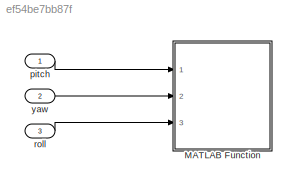
MODEL slx_ef54be7bb87f
KIND model
CONFIG AbsTol = auto
CONFIG EnableMultiTasking = off
CONFIG FixedStep = auto
CONFIG MaxStep = auto
CONFIG MinStep = auto
CONFIG RelTol = 1e-3
CONFIG SampleTimeConstraint = Unconstrained
CONFIG Solver = FixedStepDiscrete
CONFIG SolverName = FixedStepDiscrete
CONFIG StartTime = 0.0
CONFIG StopTime = 10.0
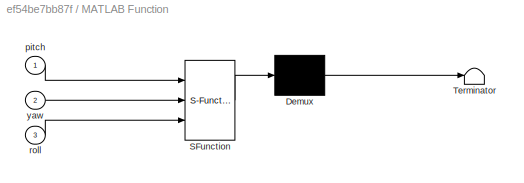
BLOCK [SubSystem] MATLAB Function
  ErrorFcn = Stateflow.Translate.translate
  PermitHierarchicalResolution = ExplicitOnly
  Ports = [3]
  RequestExecContextInheritance = off
  SFBlockType = MATLAB Function
  TreatAsAtomicUnit = on
BLOCK [Demux] MATLAB Function/ Demux 
  Outputs = 1
  Ports = [1, 1]
BLOCK [S-Function] MATLAB Function/ SFunction 
  EnableBusSupport = on
  FunctionName = sf_sfun
  PortCounts = [3 1]
  Ports = [3, 1]
  SFcnIsStateOwnerBlock = off
  SFunctionDeploymentMode = off
  Tag = Stateflow S-Function 2
BLOCK [Terminator] MATLAB Function/ Terminator 
BLOCK [Inport] MATLAB Function/pitch
BLOCK [Inport] MATLAB Function/roll
  Port = 3
BLOCK [Inport] MATLAB Function/yaw
  Port = 2
BLOCK [Inport] pitch
BLOCK [Inport] roll
  Port = 3
BLOCK [Inport] yaw
  Port = 2
LINE pitch:1 -> MATLAB Function:1
LINE roll:1 -> MATLAB Function:3
LINE yaw:1 -> MATLAB Function:2
CHART MATLAB Function states=1 transitions=1
  STATE_LABEL 'eML_blk_kernel()'
  STATE_LABEL "SCRIPT:\nfunction write_control(pitch, yaw, roll)\n    coder.extrinsic('evalin');\n    if pitch ~= 0\n        evalin('base', sprintf('vessel_control.setPitch(%0.5f);', pitch));\n    end\n    if yaw ~= 0\n        evalin('base', sprintf('vessel_control.setYaw(%0.5f);', yaw));\n    end\n    if roll ~= 0\n        evalin('base', sprintf('vessel_control.setRoll(%0.5f);', roll));\n    end\n    \nend"
CHART  states=0 transitions=0
